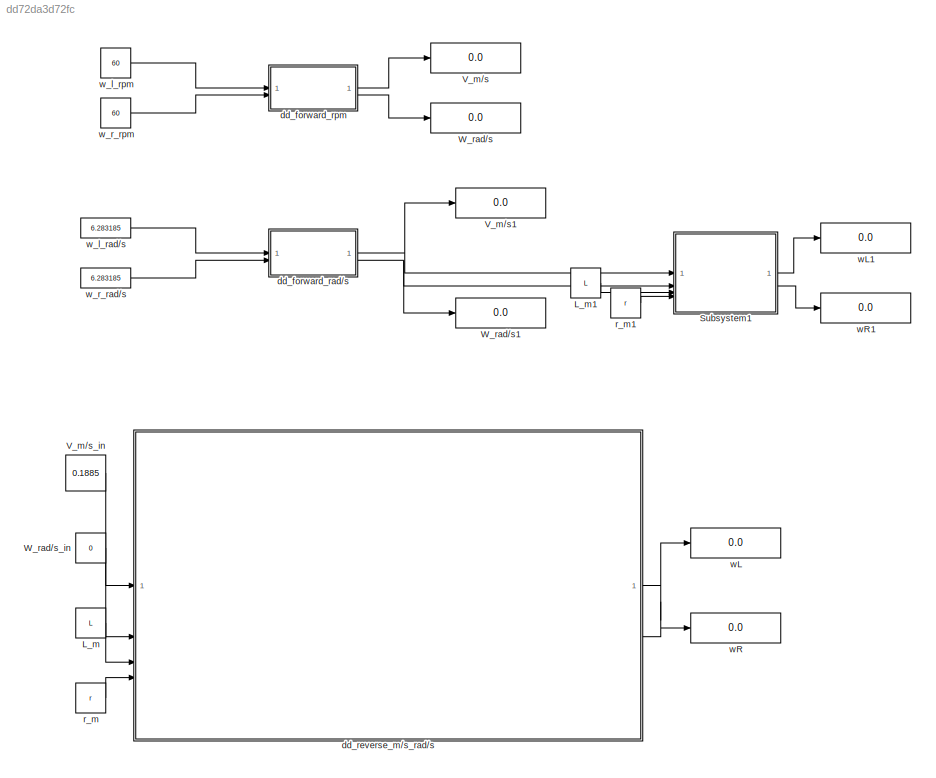
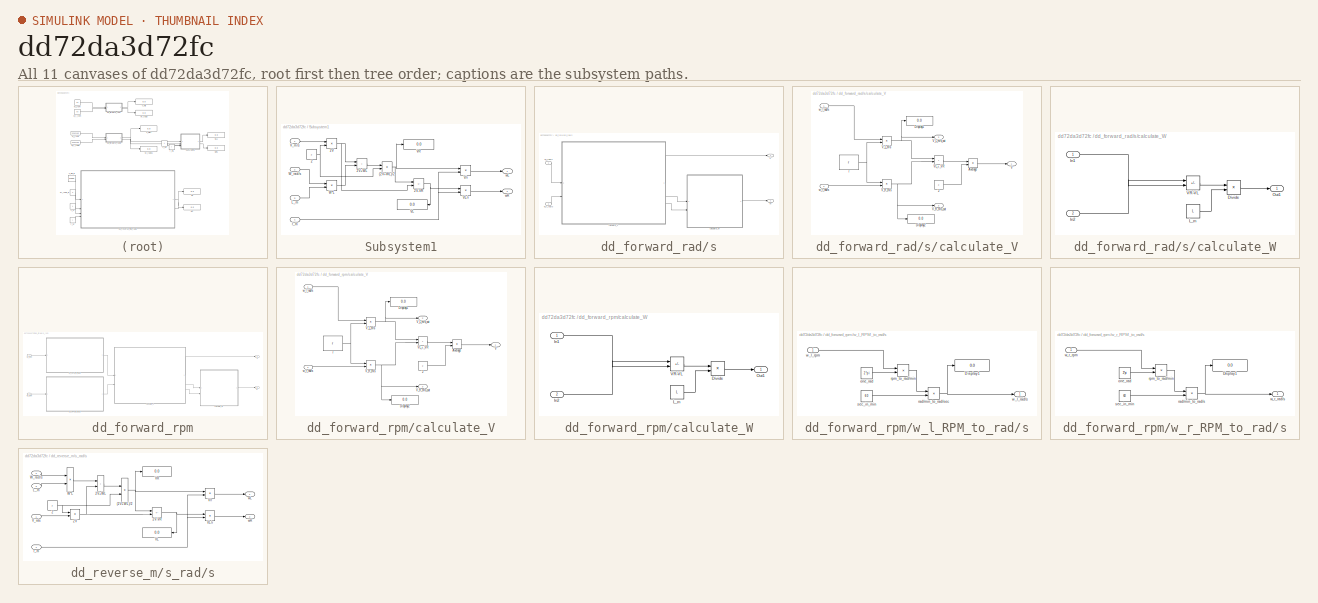
[diagram: thumbnail index - all 11 canvases of the model, root first then tree order]
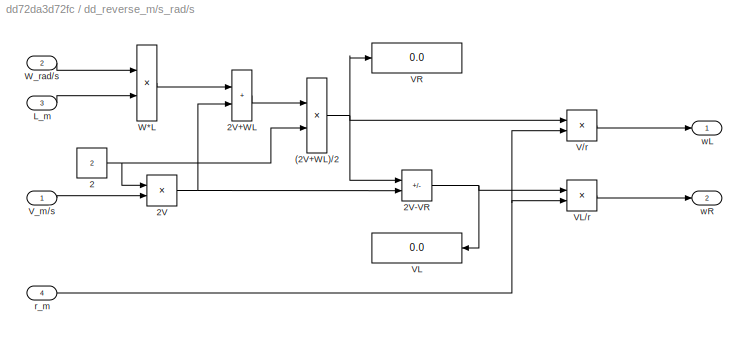
MODEL slx_dd72da3d72fc
KIND model
CONFIG AbsTol = auto
CONFIG EnableMultiTasking = off
CONFIG FixedStep = auto
CONFIG MaxStep = auto
CONFIG MinStep = auto
CONFIG RelTol = 1e-3
CONFIG SampleTimeConstraint = Unconstrained
CONFIG SolverName = VariableStepAuto
CONFIG StartTime = 0.0
CONFIG StopTime = 10.0
WORKSPACE source: mxarray member
WORKSPACE L: Simulink.Parameter (value not decoded)
WORKSPACE r: Simulink.Parameter (value not decoded)
BLOCK [Constant] L_m
  Value = L
BLOCK [Constant] L_m1
  Value = L
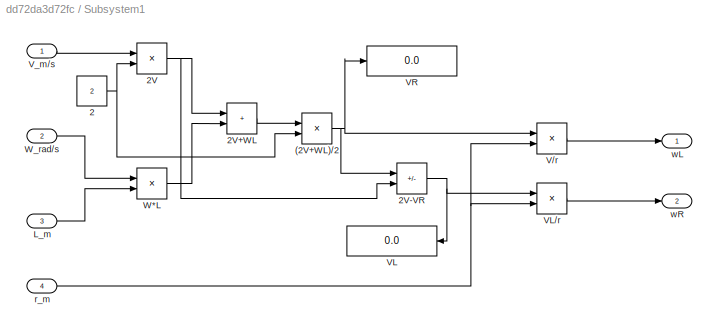
BLOCK [SubSystem] Subsystem1
BLOCK [Product] Subsystem1/(2V+WL)//2
  Inputs = */
BLOCK [Constant] Subsystem1/2
  Value = 2
BLOCK [Product] Subsystem1/2V
BLOCK [Sum] Subsystem1/2V+WL
  IconShape = rectangular
BLOCK [Sum] Subsystem1/2V-VR
  IconShape = rectangular
  Inputs = -+
BLOCK [Inport] Subsystem1/L_m
  Port = 3
BLOCK [Product] Subsystem1/V//r
  Inputs = */
BLOCK [Display] Subsystem1/VL
  Decimation = 1
BLOCK [Product] Subsystem1/VL//r
  Inputs = */
BLOCK [Display] Subsystem1/VR
  Decimation = 1
BLOCK [Inport] Subsystem1/V_m//s
BLOCK [Product] Subsystem1/W*L
BLOCK [Inport] Subsystem1/W_rad//s
  Port = 2
BLOCK [Inport] Subsystem1/r_m
  Port = 4
BLOCK [Outport] Subsystem1/wL
BLOCK [Outport] Subsystem1/wR
  Port = 2
BLOCK [Display] V_m//s
  Decimation = 1
BLOCK [Display] V_m//s1
  Decimation = 1
BLOCK [Constant] V_m//s_in
  Value = 0.1885
BLOCK [Display] W_rad//s
  Decimation = 1
BLOCK [Display] W_rad//s1
  Decimation = 1
BLOCK [Constant] W_rad//s_in
  Value = 0
BLOCK [SubSystem] dd_forward_rad//s
BLOCK [Outport] dd_forward_rad//s/V
BLOCK [Outport] dd_forward_rad//s/W
  Port = 2
BLOCK [SubSystem] dd_forward_rad//s/calculate_V
BLOCK [Constant] dd_forward_rad//s/calculate_V/2
  Value = 2
BLOCK [Product] dd_forward_rad//s/calculate_V/Average
  Inputs = */
BLOCK [Display] dd_forward_rad//s/calculate_V/Display1
  Decimation = 1
BLOCK [Display] dd_forward_rad//s/calculate_V/Display2
  Decimation = 1
BLOCK [Outport] dd_forward_rad//s/calculate_V/V
BLOCK [Sum] dd_forward_rad//s/calculate_V/VL_+_VR
  IconShape = rectangular
BLOCK [Product] dd_forward_rad//s/calculate_V/V_L_m//s
BLOCK [Outport] dd_forward_rad//s/calculate_V/V_L_m//s_out
  Port = 2
BLOCK [Product] dd_forward_rad//s/calculate_V/V_R_m//s
BLOCK [Outport] dd_forward_rad//s/calculate_V/V_R_m//s_out
  Port = 3
BLOCK [Constant] dd_forward_rad//s/calculate_V/r
  Value = r
BLOCK [Inport] dd_forward_rad//s/calculate_V/w_l_rad//s
BLOCK [Inport] dd_forward_rad//s/calculate_V/w_r_rad//s
  Port = 2
BLOCK [SubSystem] dd_forward_rad//s/calculate_W
BLOCK [Product] dd_forward_rad//s/calculate_W/Divide
  Inputs = */
BLOCK [Inport] dd_forward_rad//s/calculate_W/In1
BLOCK [Inport] dd_forward_rad//s/calculate_W/In2
  Port = 2
BLOCK [Constant] dd_forward_rad//s/calculate_W/L_m
  Value = L
BLOCK [Outport] dd_forward_rad//s/calculate_W/Out1
BLOCK [Sum] dd_forward_rad//s/calculate_W/VR-VL
  IconShape = rectangular
  Inputs = +-
BLOCK [Inport] dd_forward_rad//s/w_l_rad//s
BLOCK [Inport] dd_forward_rad//s/w_r_rad//s
  Port = 2
BLOCK [SubSystem] dd_forward_rpm
BLOCK [Outport] dd_forward_rpm/V
BLOCK [Outport] dd_forward_rpm/W
  Port = 2
BLOCK [SubSystem] dd_forward_rpm/calculate_V
BLOCK [Constant] dd_forward_rpm/calculate_V/2
  Value = 2
BLOCK [Product] dd_forward_rpm/calculate_V/Average
  Inputs = */
BLOCK [Display] dd_forward_rpm/calculate_V/Display1
  Decimation = 1
BLOCK [Display] dd_forward_rpm/calculate_V/Display2
  Decimation = 1
BLOCK [Outport] dd_forward_rpm/calculate_V/V
BLOCK [Sum] dd_forward_rpm/calculate_V/VL_+_VR
  IconShape = rectangular
BLOCK [Product] dd_forward_rpm/calculate_V/V_L_m//s
BLOCK [Outport] dd_forward_rpm/calculate_V/V_L_m//s_out
  Port = 2
BLOCK [Product] dd_forward_rpm/calculate_V/V_R_m//s
BLOCK [Outport] dd_forward_rpm/calculate_V/V_R_m//s_out
  Port = 3
BLOCK [Constant] dd_forward_rpm/calculate_V/r
  Value = r
BLOCK [Inport] dd_forward_rpm/calculate_V/w_l_rad//s
BLOCK [Inport] dd_forward_rpm/calculate_V/w_r_rad//s
  Port = 2
BLOCK [SubSystem] dd_forward_rpm/calculate_W
BLOCK [Product] dd_forward_rpm/calculate_W/Divide
  Inputs = */
BLOCK [Inport] dd_forward_rpm/calculate_W/In1
BLOCK [Inport] dd_forward_rpm/calculate_W/In2
  Port = 2
BLOCK [Constant] dd_forward_rpm/calculate_W/L_m
  Value = L
BLOCK [Outport] dd_forward_rpm/calculate_W/Out1
BLOCK [Sum] dd_forward_rpm/calculate_W/VR-VL
  IconShape = rectangular
  Inputs = +-
BLOCK [SubSystem] dd_forward_rpm/w_l_RPM_to_rad//s
BLOCK [Display] dd_forward_rpm/w_l_RPM_to_rad//s/Display1
  Decimation = 1
BLOCK [Constant] dd_forward_rpm/w_l_RPM_to_rad//s/one_rad
  Value = 2*pi
BLOCK [Product] dd_forward_rpm/w_l_RPM_to_rad//s/rad//min_to_rad//sec
  Inputs = */
BLOCK [Product] dd_forward_rpm/w_l_RPM_to_rad//s/rpm_to_rad//min
BLOCK [Constant] dd_forward_rpm/w_l_RPM_to_rad//s/sec_in_min
  Value = 60
BLOCK [Outport] dd_forward_rpm/w_l_RPM_to_rad//s/w_l_rad//s
BLOCK [Inport] dd_forward_rpm/w_l_RPM_to_rad//s/w_l_rpm
BLOCK [Inport] dd_forward_rpm/w_l_rpm
BLOCK [SubSystem] dd_forward_rpm/w_r_RPM_to_rad//s
BLOCK [Display] dd_forward_rpm/w_r_RPM_to_rad//s/Display1
  Decimation = 1
BLOCK [Constant] dd_forward_rpm/w_r_RPM_to_rad//s/one_rad
  Value = 2*pi
BLOCK [Product] dd_forward_rpm/w_r_RPM_to_rad//s/rad//min_to_rad//s
  Inputs = */
BLOCK [Product] dd_forward_rpm/w_r_RPM_to_rad//s/rpm_to_rad//min
BLOCK [Constant] dd_forward_rpm/w_r_RPM_to_rad//s/sec_in_min
  Value = 60
BLOCK [Outport] dd_forward_rpm/w_r_RPM_to_rad//s/w_r_rad//s
BLOCK [Inport] dd_forward_rpm/w_r_RPM_to_rad//s/w_r_rpm
BLOCK [Inport] dd_forward_rpm/w_r_rpm
  Port = 2
BLOCK [SubSystem] dd_reverse_m//s_rad//s
BLOCK [Product] dd_reverse_m//s_rad//s/(2V+WL)//2
  Inputs = */
BLOCK [Constant] dd_reverse_m//s_rad//s/2
  Value = 2
BLOCK [Product] dd_reverse_m//s_rad//s/2V
BLOCK [Sum] dd_reverse_m//s_rad//s/2V+WL
  IconShape = rectangular
BLOCK [Sum] dd_reverse_m//s_rad//s/2V-VR
  IconShape = rectangular
  Inputs = -+
BLOCK [Inport] dd_reverse_m//s_rad//s/L_m
  Port = 3
BLOCK [Product] dd_reverse_m//s_rad//s/V//r
  Inputs = */
BLOCK [Display] dd_reverse_m//s_rad//s/VL
  Decimation = 1
BLOCK [Product] dd_reverse_m//s_rad//s/VL//r
  Inputs = */
BLOCK [Display] dd_reverse_m//s_rad//s/VR
  Decimation = 1
BLOCK [Inport] dd_reverse_m//s_rad//s/V_m//s
BLOCK [Product] dd_reverse_m//s_rad//s/W*L
BLOCK [Inport] dd_reverse_m//s_rad//s/W_rad//s
  Port = 2
BLOCK [Inport] dd_reverse_m//s_rad//s/r_m
  Port = 4
BLOCK [Outport] dd_reverse_m//s_rad//s/wL
BLOCK [Outport] dd_reverse_m//s_rad//s/wR
  Port = 2
BLOCK [Constant] r_m
  Value = r
BLOCK [Constant] r_m1
  Value = r
BLOCK [Display] wL
  Decimation = 1
BLOCK [Display] wL1
  Decimation = 1
BLOCK [Display] wR
  Decimation = 1
BLOCK [Display] wR1
  Decimation = 1
BLOCK [Constant] w_l_rad//s
  Value = 6.283185
BLOCK [Constant] w_l_rpm
  Value = 60
BLOCK [Constant] w_r_rad//s
  Value = 6.283185
BLOCK [Constant] w_r_rpm
  Value = 60
LINE L_m1:1 -> Subsystem1:3
LINE L_m:1 -> dd_reverse_m//s_rad//s:3
NET Subsystem1/(2V+WL)//2:1 -> Subsystem1/2V-VR:1, Subsystem1/V//r:1, Subsystem1/VR:1
NET Subsystem1/2:1 -> Subsystem1/(2V+WL)//2:2, Subsystem1/2V:2
LINE Subsystem1/2V+WL:1 -> Subsystem1/(2V+WL)//2:1
NET Subsystem1/2V-VR:1 -> Subsystem1/VL//r:1, Subsystem1/VL:1
NET Subsystem1/2V:1 -> Subsystem1/2V+WL:1, Subsystem1/2V-VR:2
LINE Subsystem1/L_m:1 -> Subsystem1/W*L:2
LINE Subsystem1/V//r:1 -> Subsystem1/wL:1
LINE Subsystem1/VL//r:1 -> Subsystem1/wR:1
LINE Subsystem1/V_m//s:1 -> Subsystem1/2V:1
LINE Subsystem1/W*L:1 -> Subsystem1/2V+WL:2
LINE Subsystem1/W_rad//s:1 -> Subsystem1/W*L:1
NET Subsystem1/r_m:1 -> Subsystem1/V//r:2, Subsystem1/VL//r:2
LINE Subsystem1:1 -> wL1:1
LINE Subsystem1:2 -> wR1:1
LINE V_m//s_in:1 -> dd_reverse_m//s_rad//s:1
LINE W_rad//s_in:1 -> dd_reverse_m//s_rad//s:2
LINE dd_forward_rad//s/calculate_V/2:1 -> dd_forward_rad//s/calculate_V/Average:2
LINE dd_forward_rad//s/calculate_V/Average:1 -> dd_forward_rad//s/calculate_V/V:1
LINE dd_forward_rad//s/calculate_V/VL_+_VR:1 -> dd_forward_rad//s/calculate_V/Average:1
NET dd_forward_rad//s/calculate_V/V_L_m//s:1 -> dd_forward_rad//s/calculate_V/Display1:1, dd_forward_rad//s/calculate_V/VL_+_VR:1, dd_forward_rad//s/calculate_V/V_L_m//s_out:1
NET dd_forward_rad//s/calculate_V/V_R_m//s:1 -> dd_forward_rad//s/calculate_V/Display2:1, dd_forward_rad//s/calculate_V/VL_+_VR:2, dd_forward_rad//s/calculate_V/V_R_m//s_out:1
NET dd_forward_rad//s/calculate_V/r:1 -> dd_forward_rad//s/calculate_V/V_L_m//s:2, dd_forward_rad//s/calculate_V/V_R_m//s:1
LINE dd_forward_rad//s/calculate_V/w_l_rad//s:1 -> dd_forward_rad//s/calculate_V/V_L_m//s:1
LINE dd_forward_rad//s/calculate_V/w_r_rad//s:1 -> dd_forward_rad//s/calculate_V/V_R_m//s:2
LINE dd_forward_rad//s/calculate_V:1 -> dd_forward_rad//s/V:1
LINE dd_forward_rad//s/calculate_V:2 -> dd_forward_rad//s/calculate_W:1
LINE dd_forward_rad//s/calculate_V:3 -> dd_forward_rad//s/calculate_W:2
LINE dd_forward_rad//s/calculate_W/Divide:1 -> dd_forward_rad//s/calculate_W/Out1:1
LINE dd_forward_rad//s/calculate_W/In1:1 -> dd_forward_rad//s/calculate_W/VR-VL:2
LINE dd_forward_rad//s/calculate_W/In2:1 -> dd_forward_rad//s/calculate_W/VR-VL:1
LINE dd_forward_rad//s/calculate_W/L_m:1 -> dd_forward_rad//s/calculate_W/Divide:2
LINE dd_forward_rad//s/calculate_W/VR-VL:1 -> dd_forward_rad//s/calculate_W/Divide:1
LINE dd_forward_rad//s/calculate_W:1 -> dd_forward_rad//s/W:1
LINE dd_forward_rad//s/w_l_rad//s:1 -> dd_forward_rad//s/calculate_V:1
LINE dd_forward_rad//s/w_r_rad//s:1 -> dd_forward_rad//s/calculate_V:2
NET dd_forward_rad//s:1 -> Subsystem1:1, V_m//s1:1
NET dd_forward_rad//s:2 -> Subsystem1:2, W_rad//s1:1
LINE dd_forward_rpm/calculate_V/2:1 -> dd_forward_rpm/calculate_V/Average:2
LINE dd_forward_rpm/calculate_V/Average:1 -> dd_forward_rpm/calculate_V/V:1
LINE dd_forward_rpm/calculate_V/VL_+_VR:1 -> dd_forward_rpm/calculate_V/Average:1
NET dd_forward_rpm/calculate_V/V_L_m//s:1 -> dd_forward_rpm/calculate_V/Display1:1, dd_forward_rpm/calculate_V/VL_+_VR:1, dd_forward_rpm/calculate_V/V_L_m//s_out:1
NET dd_forward_rpm/calculate_V/V_R_m//s:1 -> dd_forward_rpm/calculate_V/Display2:1, dd_forward_rpm/calculate_V/VL_+_VR:2, dd_forward_rpm/calculate_V/V_R_m//s_out:1
NET dd_forward_rpm/calculate_V/r:1 -> dd_forward_rpm/calculate_V/V_L_m//s:2, dd_forward_rpm/calculate_V/V_R_m//s:1
LINE dd_forward_rpm/calculate_V/w_l_rad//s:1 -> dd_forward_rpm/calculate_V/V_L_m//s:1
LINE dd_forward_rpm/calculate_V/w_r_rad//s:1 -> dd_forward_rpm/calculate_V/V_R_m//s:2
LINE dd_forward_rpm/calculate_V:1 -> dd_forward_rpm/V:1
LINE dd_forward_rpm/calculate_V:2 -> dd_forward_rpm/calculate_W:1
LINE dd_forward_rpm/calculate_V:3 -> dd_forward_rpm/calculate_W:2
LINE dd_forward_rpm/calculate_W/Divide:1 -> dd_forward_rpm/calculate_W/Out1:1
LINE dd_forward_rpm/calculate_W/In1:1 -> dd_forward_rpm/calculate_W/VR-VL:2
LINE dd_forward_rpm/calculate_W/In2:1 -> dd_forward_rpm/calculate_W/VR-VL:1
LINE dd_forward_rpm/calculate_W/L_m:1 -> dd_forward_rpm/calculate_W/Divide:2
LINE dd_forward_rpm/calculate_W/VR-VL:1 -> dd_forward_rpm/calculate_W/Divide:1
LINE dd_forward_rpm/calculate_W:1 -> dd_forward_rpm/W:1
LINE dd_forward_rpm/w_l_RPM_to_rad//s/one_rad:1 -> dd_forward_rpm/w_l_RPM_to_rad//s/rpm_to_rad//min:2
NET dd_forward_rpm/w_l_RPM_to_rad//s/rad//min_to_rad//sec:1 -> dd_forward_rpm/w_l_RPM_to_rad//s/Display1:1, dd_forward_rpm/w_l_RPM_to_rad//s/w_l_rad//s:1
LINE dd_forward_rpm/w_l_RPM_to_rad//s/rpm_to_rad//min:1 -> dd_forward_rpm/w_l_RPM_to_rad//s/rad//min_to_rad//sec:1
LINE dd_forward_rpm/w_l_RPM_to_rad//s/sec_in_min:1 -> dd_forward_rpm/w_l_RPM_to_rad//s/rad//min_to_rad//sec:2
LINE dd_forward_rpm/w_l_RPM_to_rad//s/w_l_rpm:1 -> dd_forward_rpm/w_l_RPM_to_rad//s/rpm_to_rad//min:1
LINE dd_forward_rpm/w_l_RPM_to_rad//s:1 -> dd_forward_rpm/calculate_V:1
LINE dd_forward_rpm/w_l_rpm:1 -> dd_forward_rpm/w_l_RPM_to_rad//s:1
LINE dd_forward_rpm/w_r_RPM_to_rad//s/one_rad:1 -> dd_forward_rpm/w_r_RPM_to_rad//s/rpm_to_rad//min:2
NET dd_forward_rpm/w_r_RPM_to_rad//s/rad//min_to_rad//s:1 -> dd_forward_rpm/w_r_RPM_to_rad//s/Display1:1, dd_forward_rpm/w_r_RPM_to_rad//s/w_r_rad//s:1
LINE dd_forward_rpm/w_r_RPM_to_rad//s/rpm_to_rad//min:1 -> dd_forward_rpm/w_r_RPM_to_rad//s/rad//min_to_rad//s:1
LINE dd_forward_rpm/w_r_RPM_to_rad//s/sec_in_min:1 -> dd_forward_rpm/w_r_RPM_to_rad//s/rad//min_to_rad//s:2
LINE dd_forward_rpm/w_r_RPM_to_rad//s/w_r_rpm:1 -> dd_forward_rpm/w_r_RPM_to_rad//s/rpm_to_rad//min:1
LINE dd_forward_rpm/w_r_RPM_to_rad//s:1 -> dd_forward_rpm/calculate_V:2
LINE dd_forward_rpm/w_r_rpm:1 -> dd_forward_rpm/w_r_RPM_to_rad//s:1
LINE dd_forward_rpm:1 -> V_m//s:1
LINE dd_forward_rpm:2 -> W_rad//s:1
NET dd_reverse_m//s_rad//s/(2V+WL)//2:1 -> dd_reverse_m//s_rad//s/2V-VR:1, dd_reverse_m//s_rad//s/V//r:1, dd_reverse_m//s_rad//s/VR:1
NET dd_reverse_m//s_rad//s/2:1 -> dd_reverse_m//s_rad//s/(2V+WL)//2:2, dd_reverse_m//s_rad//s/2V:1
LINE dd_reverse_m//s_rad//s/2V+WL:1 -> dd_reverse_m//s_rad//s/(2V+WL)//2:1
NET dd_reverse_m//s_rad//s/2V-VR:1 -> dd_reverse_m//s_rad//s/VL//r:1, dd_reverse_m//s_rad//s/VL:1
NET dd_reverse_m//s_rad//s/2V:1 -> dd_reverse_m//s_rad//s/2V+WL:2, dd_reverse_m//s_rad//s/2V-VR:2
LINE dd_reverse_m//s_rad//s/L_m:1 -> dd_reverse_m//s_rad//s/W*L:2
LINE dd_reverse_m//s_rad//s/V//r:1 -> dd_reverse_m//s_rad//s/wL:1
LINE dd_reverse_m//s_rad//s/VL//r:1 -> dd_reverse_m//s_rad//s/wR:1
LINE dd_reverse_m//s_rad//s/V_m//s:1 -> dd_reverse_m//s_rad//s/2V:2
LINE dd_reverse_m//s_rad//s/W*L:1 -> dd_reverse_m//s_rad//s/2V+WL:1
LINE dd_reverse_m//s_rad//s/W_rad//s:1 -> dd_reverse_m//s_rad//s/W*L:1
NET dd_reverse_m//s_rad//s/r_m:1 -> dd_reverse_m//s_rad//s/V//r:2, dd_reverse_m//s_rad//s/VL//r:2
LINE dd_reverse_m//s_rad//s:1 -> wL:1
LINE dd_reverse_m//s_rad//s:2 -> wR:1
LINE r_m1:1 -> Subsystem1:4
LINE r_m:1 -> dd_reverse_m//s_rad//s:4
LINE w_l_rad//s:1 -> dd_forward_rad//s:1
LINE w_l_rpm:1 -> dd_forward_rpm:1
LINE w_r_rad//s:1 -> dd_forward_rad//s:2
LINE w_r_rpm:1 -> dd_forward_rpm:2
note: NET lines group one-source signal fan-out (src -> all destinations, sorted); 1:1 wires keep LINE
